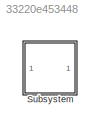
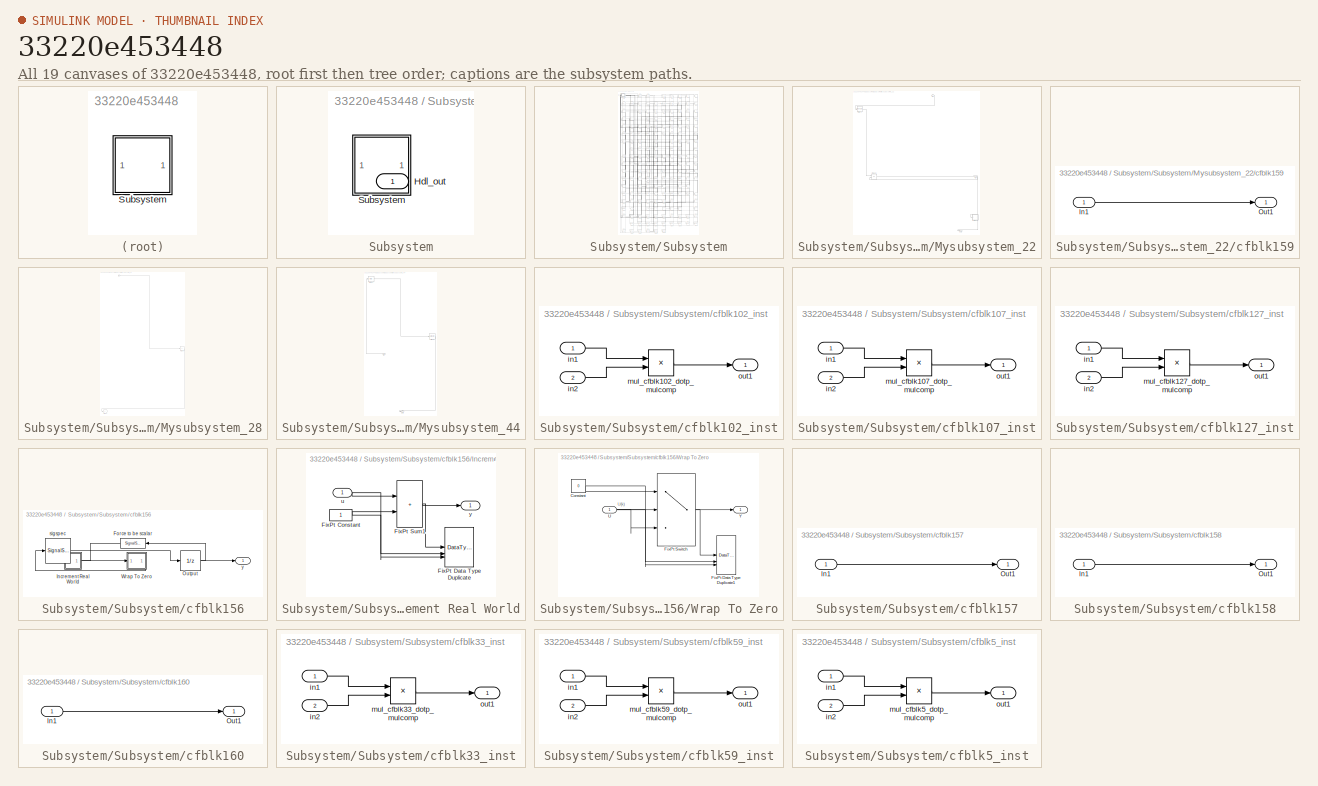
[diagram: thumbnail index - all 19 canvases of the model, root first then tree order]
MODEL slx_33220e453448
KIND model
CONFIG AbsTol = auto
CONFIG EnableMultiTasking = off
CONFIG FixedStep = auto
CONFIG MaxStep = auto
CONFIG MinStep = auto
CONFIG RelTol = 1e-3
CONFIG SampleTimeConstraint = Unconstrained
CONFIG SolverName = VariableStepAuto
CONFIG StartTime = 0.0
CONFIG StopTime = 10.0
BLOCK [SubSystem] Subsystem
BLOCK [Outport] Subsystem/Hdl_out
  OutDataTypeStr = uint8
  SampleTime = 1
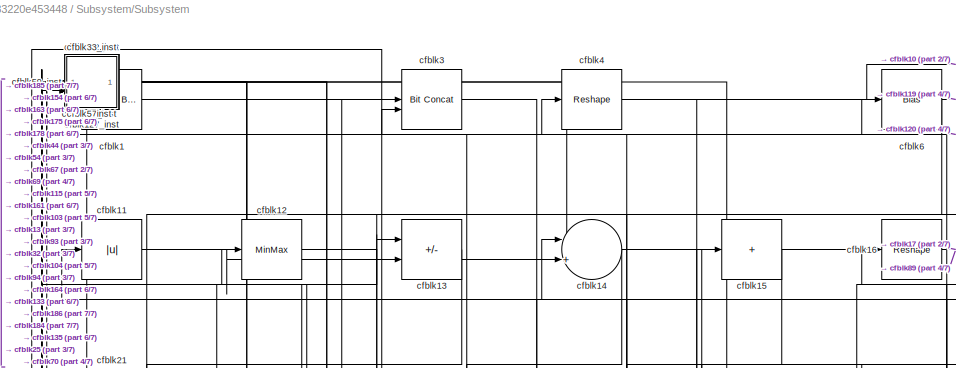
[diagram: Subsystem/Subsystem - part 1/7, top left region]
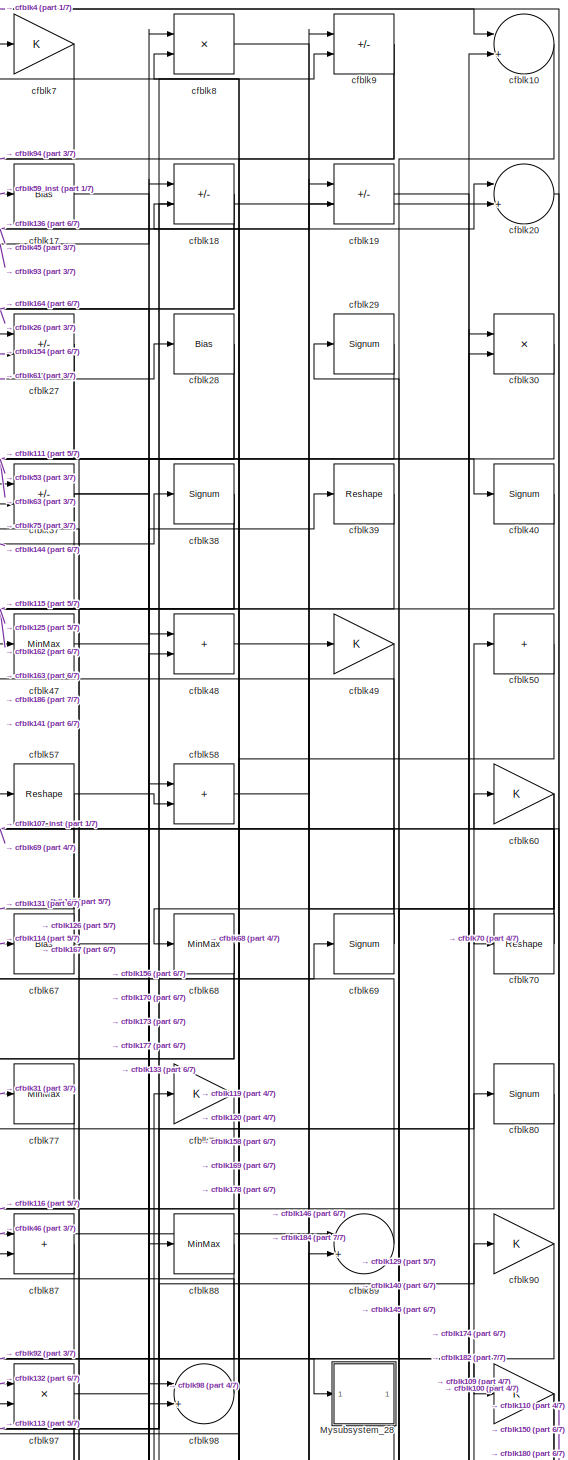
[diagram: Subsystem/Subsystem - part 2/7, top right region]
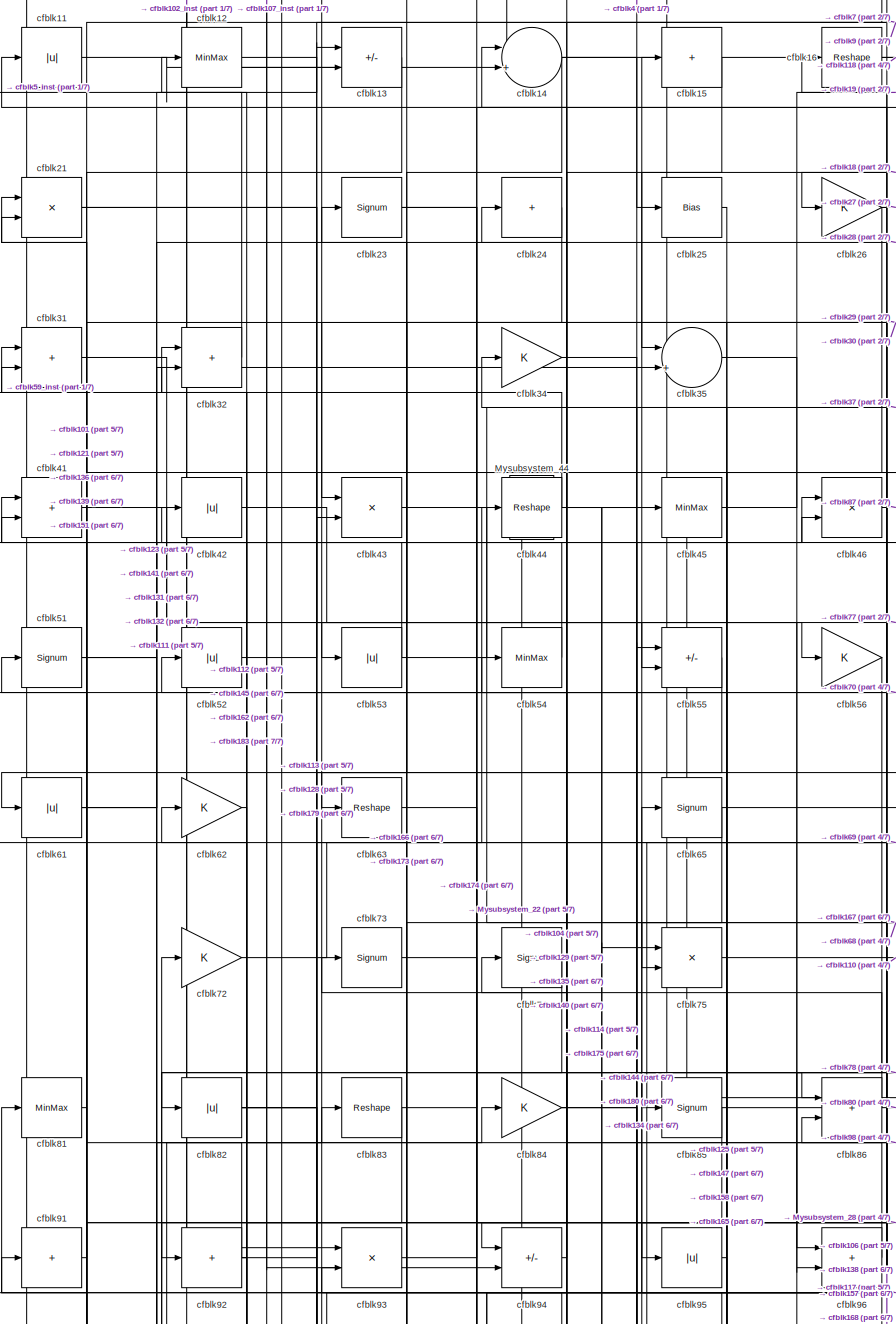
[diagram: Subsystem/Subsystem - part 3/7, top left region]
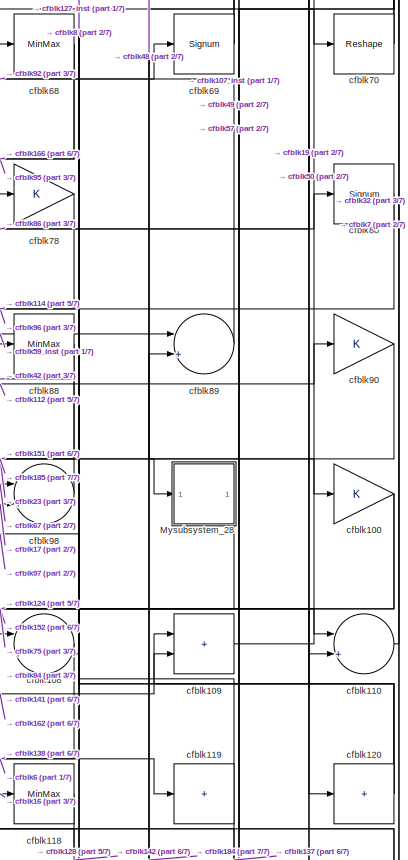
[diagram: Subsystem/Subsystem - part 4/7, middle right region]
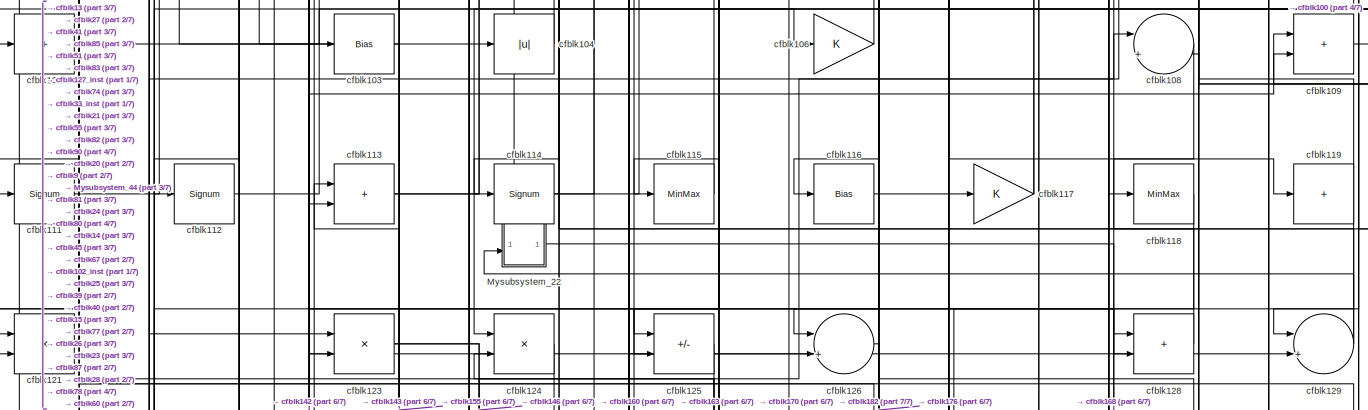
[diagram: Subsystem/Subsystem - part 5/7, full width, middle band]
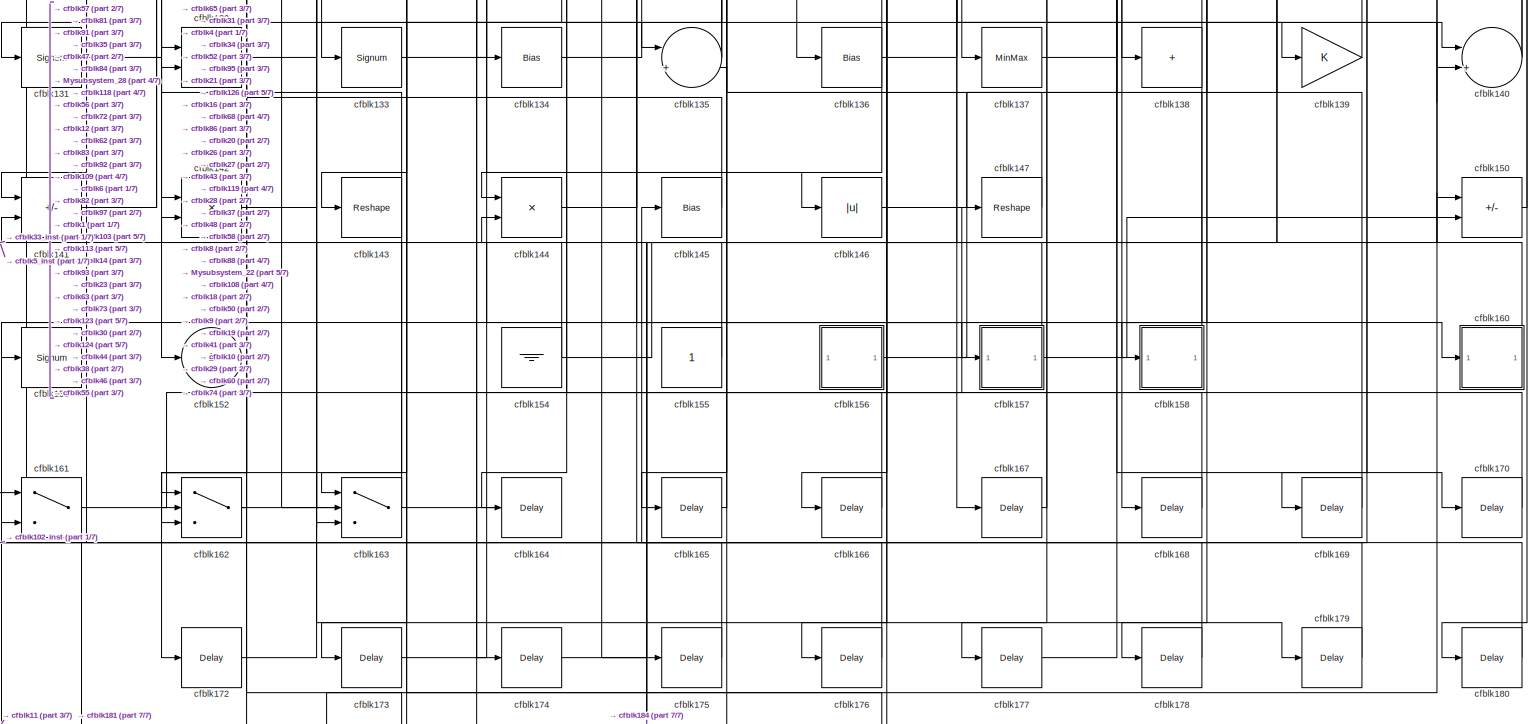
[diagram: Subsystem/Subsystem - part 6/7, full width, bottom band]
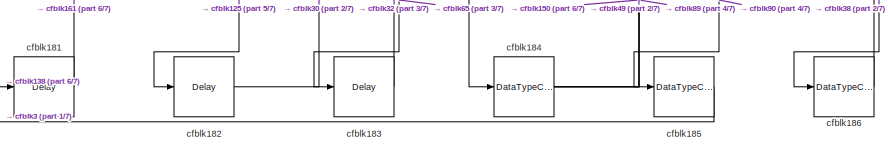
[diagram: Subsystem/Subsystem - part 7/7, bottom left region]
BLOCK [SubSystem] Subsystem/Subsystem
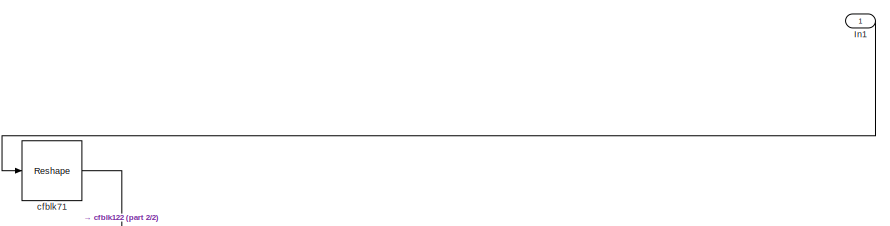
[diagram: Subsystem/Subsystem/Mysubsystem_22 - part 1/2, top left region]
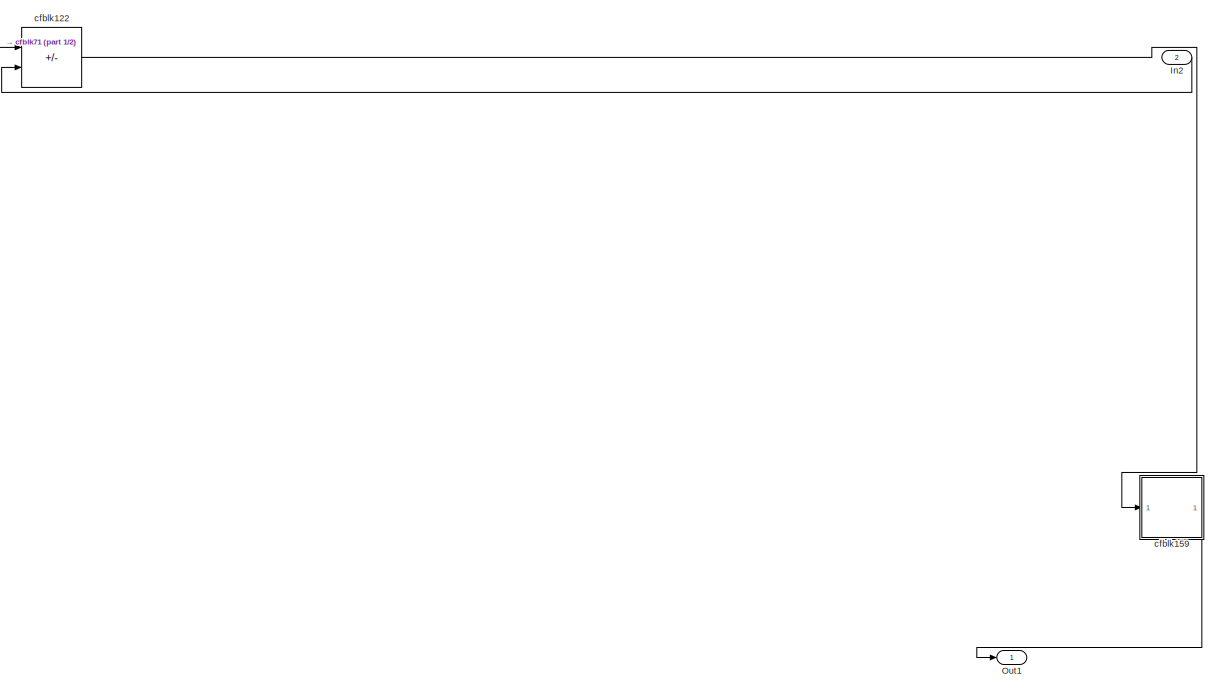
[diagram: Subsystem/Subsystem/Mysubsystem_22 - part 2/2, full width, bottom band]
BLOCK [SubSystem] Subsystem/Subsystem/Mysubsystem_22
BLOCK [Inport] Subsystem/Subsystem/Mysubsystem_22/In1
  OutDataTypeStr = uint8
  PortDimensions = 1
  SampleTime = 1
BLOCK [Inport] Subsystem/Subsystem/Mysubsystem_22/In2
  OutDataTypeStr = uint8
  Port = 2
  PortDimensions = 1
  SampleTime = 1
BLOCK [Outport] Subsystem/Subsystem/Mysubsystem_22/Out1
  SampleTime = 1
BLOCK [Sum] Subsystem/Subsystem/Mysubsystem_22/cfblk122
  IconShape = rectangular
  Inputs = +-
BLOCK [SubSystem] Subsystem/Subsystem/Mysubsystem_22/cfblk159
BLOCK [Inport] Subsystem/Subsystem/Mysubsystem_22/cfblk159/In1
  OutDataTypeStr = uint8
  PortDimensions = 1
  SampleTime = 1
BLOCK [Outport] Subsystem/Subsystem/Mysubsystem_22/cfblk159/Out1
  SampleTime = 1
BLOCK [Reshape] Subsystem/Subsystem/Mysubsystem_22/cfblk71
BLOCK [SubSystem] Subsystem/Subsystem/Mysubsystem_28
BLOCK [Inport] Subsystem/Subsystem/Mysubsystem_28/In1
  OutDataTypeStr = uint8
  PortDimensions = 1
  SampleTime = 1
BLOCK [Outport] Subsystem/Subsystem/Mysubsystem_28/cfblk152
  SampleTime = 1
  VectorParamsAs1DForOutWhenUnconnected = off
BLOCK [Sum] Subsystem/Subsystem/Mysubsystem_28/cfblk99
  IconShape = rectangular
  Inputs = +
BLOCK [SubSystem] Subsystem/Subsystem/Mysubsystem_44
BLOCK [Inport] Subsystem/Subsystem/Mysubsystem_44/In1
  OutDataTypeStr = uint8
  PortDimensions = 1
  SampleTime = 1
BLOCK [Outport] Subsystem/Subsystem/Mysubsystem_44/Out1
  SampleTime = 1
BLOCK [Bias] Subsystem/Subsystem/Mysubsystem_44/cfblk22
  Bias = 0.0
  SaturateOnIntegerOverflow = off
BLOCK [Signum] Subsystem/Subsystem/Mysubsystem_44/cfblk66
BLOCK [Reference] Subsystem/Subsystem/cfblk1  REF=simulink/Logic and Bit
Operations/Extract Bits
  LibrarySourceBlock = hdlsllib/Logic and Bit\nOperations/Extract Bits
  SourceBlock = simulink/Logic and Bit\nOperations/Extract Bits
  SourceType = Extract Bits
BLOCK [Sum] Subsystem/Subsystem/cfblk10
  Inputs = |++
  OutDataTypeStr = uint8
BLOCK [Gain] Subsystem/Subsystem/cfblk100
  OutDataTypeStr = uint8
BLOCK [Sum] Subsystem/Subsystem/cfblk101
  IconShape = rectangular
  Inputs = +
  OutDataTypeStr = uint8
BLOCK [SubSystem] Subsystem/Subsystem/cfblk102_inst
BLOCK [Inport] Subsystem/Subsystem/cfblk102_inst/in1
  OutDataTypeStr = uint8
  SampleTime = 1
BLOCK [Inport] Subsystem/Subsystem/cfblk102_inst/in2
  OutDataTypeStr = uint8
  Port = 2
  SampleTime = 1
BLOCK [Product] Subsystem/Subsystem/cfblk102_inst/mul_cfblk102_dotp_mulcomp
  Inputs = **
  OutDataTypeStr = uint8
  SampleTime = 1
BLOCK [Outport] Subsystem/Subsystem/cfblk102_inst/out1
  OutDataTypeStr = uint8
  SampleTime = 1
BLOCK [Bias] Subsystem/Subsystem/cfblk103
  Bias = 0.0
  SaturateOnIntegerOverflow = off
BLOCK [Abs] Subsystem/Subsystem/cfblk104
  OutDataTypeStr = uint8
  SaturateOnIntegerOverflow = off
BLOCK [Gain] Subsystem/Subsystem/cfblk106
  OutDataTypeStr = uint8
BLOCK [SubSystem] Subsystem/Subsystem/cfblk107_inst
BLOCK [Inport] Subsystem/Subsystem/cfblk107_inst/in1
  OutDataTypeStr = uint8
  SampleTime = 1
BLOCK [Inport] Subsystem/Subsystem/cfblk107_inst/in2
  OutDataTypeStr = uint8
  Port = 2
  SampleTime = 1
BLOCK [Product] Subsystem/Subsystem/cfblk107_inst/mul_cfblk107_dotp_mulcomp
  Inputs = **
  OutDataTypeStr = uint8
  SampleTime = 1
BLOCK [Outport] Subsystem/Subsystem/cfblk107_inst/out1
  OutDataTypeStr = uint8
  SampleTime = 1
BLOCK [Sum] Subsystem/Subsystem/cfblk108
  Inputs = |++
  OutDataTypeStr = uint8
BLOCK [Sum] Subsystem/Subsystem/cfblk109
  IconShape = rectangular
  OutDataTypeStr = uint8
BLOCK [Abs] Subsystem/Subsystem/cfblk11
  OutDataTypeStr = uint8
  SaturateOnIntegerOverflow = off
BLOCK [Sum] Subsystem/Subsystem/cfblk110
  Inputs = |++
  OutDataTypeStr = uint8
BLOCK [Signum] Subsystem/Subsystem/cfblk111
BLOCK [Signum] Subsystem/Subsystem/cfblk112
BLOCK [Sum] Subsystem/Subsystem/cfblk113
  IconShape = rectangular
  OutDataTypeStr = uint8
BLOCK [Signum] Subsystem/Subsystem/cfblk114
BLOCK [MinMax] Subsystem/Subsystem/cfblk115
  OutDataTypeStr = uint8
BLOCK [Bias] Subsystem/Subsystem/cfblk116
  Bias = 0.0
  SaturateOnIntegerOverflow = off
BLOCK [Gain] Subsystem/Subsystem/cfblk117
  OutDataTypeStr = uint8
BLOCK [MinMax] Subsystem/Subsystem/cfblk118
  OutDataTypeStr = uint8
BLOCK [Sum] Subsystem/Subsystem/cfblk119
  IconShape = rectangular
  Inputs = +
  OutDataTypeStr = uint8
BLOCK [MinMax] Subsystem/Subsystem/cfblk12
  OutDataTypeStr = uint8
BLOCK [Sum] Subsystem/Subsystem/cfblk120
  IconShape = rectangular
  Inputs = +
  OutDataTypeStr = uint8
BLOCK [Product] Subsystem/Subsystem/cfblk121
  Inputs = */
  OutDataTypeStr = uint8
  RndMeth = Zero
  SaturateOnIntegerOverflow = on
BLOCK [Product] Subsystem/Subsystem/cfblk123
  Inputs = */
  OutDataTypeStr = uint8
  RndMeth = Zero
  SaturateOnIntegerOverflow = on
BLOCK [Product] Subsystem/Subsystem/cfblk124
  Inputs = */
  OutDataTypeStr = uint8
  RndMeth = Zero
  SaturateOnIntegerOverflow = on
BLOCK [Sum] Subsystem/Subsystem/cfblk125
  IconShape = rectangular
  Inputs = +-
  OutDataTypeStr = uint8
BLOCK [Sum] Subsystem/Subsystem/cfblk126
  Inputs = |++
  OutDataTypeStr = uint8
BLOCK [SubSystem] Subsystem/Subsystem/cfblk127_inst
BLOCK [Inport] Subsystem/Subsystem/cfblk127_inst/in1
  OutDataTypeStr = uint8
  SampleTime = 1
BLOCK [Inport] Subsystem/Subsystem/cfblk127_inst/in2
  OutDataTypeStr = uint8
  Port = 2
  SampleTime = 1
BLOCK [Product] Subsystem/Subsystem/cfblk127_inst/mul_cfblk127_dotp_mulcomp
  Inputs = **
  OutDataTypeStr = uint8
  SampleTime = 1
BLOCK [Outport] Subsystem/Subsystem/cfblk127_inst/out1
  OutDataTypeStr = uint8
  SampleTime = 1
BLOCK [Sum] Subsystem/Subsystem/cfblk128
  IconShape = rectangular
  OutDataTypeStr = uint8
BLOCK [Sum] Subsystem/Subsystem/cfblk129
  Inputs = |++
  OutDataTypeStr = uint8
BLOCK [Sum] Subsystem/Subsystem/cfblk13
  IconShape = rectangular
  Inputs = +-
  OutDataTypeStr = uint8
BLOCK [Signum] Subsystem/Subsystem/cfblk131
BLOCK [Product] Subsystem/Subsystem/cfblk132
  Inputs = */
  OutDataTypeStr = uint8
  RndMeth = Zero
  SaturateOnIntegerOverflow = on
BLOCK [Signum] Subsystem/Subsystem/cfblk133
BLOCK [Bias] Subsystem/Subsystem/cfblk134
  Bias = 0.0
  SaturateOnIntegerOverflow = off
BLOCK [Sum] Subsystem/Subsystem/cfblk135
  Inputs = |++
  OutDataTypeStr = uint8
BLOCK [Bias] Subsystem/Subsystem/cfblk136
  Bias = 0.0
  SaturateOnIntegerOverflow = off
BLOCK [MinMax] Subsystem/Subsystem/cfblk137
  OutDataTypeStr = uint8
BLOCK [Sum] Subsystem/Subsystem/cfblk138
  IconShape = rectangular
  Inputs = +
  OutDataTypeStr = uint8
BLOCK [Gain] Subsystem/Subsystem/cfblk139
  OutDataTypeStr = uint8
BLOCK [Sum] Subsystem/Subsystem/cfblk14
  Inputs = |++
  OutDataTypeStr = uint8
BLOCK [Sum] Subsystem/Subsystem/cfblk140
  Inputs = |++
  OutDataTypeStr = uint8
BLOCK [Sum] Subsystem/Subsystem/cfblk141
  IconShape = rectangular
  Inputs = +-
  OutDataTypeStr = uint8
BLOCK [Product] Subsystem/Subsystem/cfblk142
  Inputs = */
  OutDataTypeStr = uint8
  RndMeth = Zero
  SaturateOnIntegerOverflow = on
BLOCK [Reshape] Subsystem/Subsystem/cfblk143
BLOCK [Product] Subsystem/Subsystem/cfblk144
  Inputs = */
  OutDataTypeStr = uint8
  RndMeth = Zero
  SaturateOnIntegerOverflow = on
BLOCK [Bias] Subsystem/Subsystem/cfblk145
  Bias = 0.0
  SaturateOnIntegerOverflow = off
BLOCK [Abs] Subsystem/Subsystem/cfblk146
  OutDataTypeStr = uint8
  SaturateOnIntegerOverflow = off
BLOCK [Reshape] Subsystem/Subsystem/cfblk147
BLOCK [Sum] Subsystem/Subsystem/cfblk15
  IconShape = rectangular
  Inputs = +
  OutDataTypeStr = uint8
BLOCK [Sum] Subsystem/Subsystem/cfblk150
  IconShape = rectangular
  Inputs = +-
  OutDataTypeStr = uint8
BLOCK [Signum] Subsystem/Subsystem/cfblk151
BLOCK [Outport] Subsystem/Subsystem/cfblk152
  OutDataTypeStr = uint8
  SampleTime = 1
  VectorParamsAs1DForOutWhenUnconnected = off
BLOCK [Ground] Subsystem/Subsystem/cfblk154
BLOCK [Constant] Subsystem/Subsystem/cfblk155
  OutDataTypeStr = uint8
  SampleTime = -1
BLOCK [SubSystem] Subsystem/Subsystem/cfblk156
BLOCK [SignalSpecification] Subsystem/Subsystem/cfblk156/Force to be scalar
  Dimensions = 1
  DisableCoverage = on
BLOCK [SubSystem] Subsystem/Subsystem/cfblk156/Increment Real World
BLOCK [Constant] Subsystem/Subsystem/cfblk156/Increment Real World/FixPt Constant
  DisableCoverage = on
  OutDataTypeStr = Inherit: Inherit via back propagation
  SampleTime = -1
BLOCK [DataTypeDuplicate] Subsystem/Subsystem/cfblk156/Increment Real World/FixPt Data Type Duplicate
  DisableCoverage = on
  NumInputPorts = 3
BLOCK [Sum] Subsystem/Subsystem/cfblk156/Increment Real World/FixPt Sum1
  IconShape = rectangular
  InputSameDT = on
  LockScale = on
  OutDataTypeStr = Inherit: Inherit via back propagation
BLOCK [Inport] Subsystem/Subsystem/cfblk156/Increment Real World/u
  OutDataTypeStr = uint8
  SampleTime = 1
BLOCK [Outport] Subsystem/Subsystem/cfblk156/Increment Real World/y
  SampleTime = 1
BLOCK [UnitDelay] Subsystem/Subsystem/cfblk156/Output
  HasFrameUpgradeWarning = on
  InitialCondition = 0.0
  SampleTime = tsamp
BLOCK [SubSystem] Subsystem/Subsystem/cfblk156/Wrap To Zero
BLOCK [Constant] Subsystem/Subsystem/cfblk156/Wrap To Zero/Constant
  DisableCoverage = on
  OutDataTypeStr = Inherit: Inherit via back propagation
  SampleTime = -1
  Value = 0
BLOCK [DataTypeDuplicate] Subsystem/Subsystem/cfblk156/Wrap To Zero/FixPt Data Type Duplicate1
  DisableCoverage = on
  NumInputPorts = 3
BLOCK [Switch] Subsystem/Subsystem/cfblk156/Wrap To Zero/FixPt Switch
  Criteria = u2 > Threshold
  InputSameDT = off
  OutDataTypeStr = Inherit: Inherit via back propagation
  SaturateOnIntegerOverflow = off
  Threshold = Threshold
  ZeroCross = off
BLOCK [Inport] Subsystem/Subsystem/cfblk156/Wrap To Zero/U
  OutDataTypeStr = uint8
  SampleTime = 1
BLOCK [Outport] Subsystem/Subsystem/cfblk156/Wrap To Zero/Y
  SampleTime = 1
BLOCK [SignalSpecification] Subsystem/Subsystem/cfblk156/sigspec
  Dimensions = 1
  OutDataTypeStr = uint8
BLOCK [Outport] Subsystem/Subsystem/cfblk156/y
  SampleTime = 1
BLOCK [SubSystem] Subsystem/Subsystem/cfblk157
BLOCK [Inport] Subsystem/Subsystem/cfblk157/In1
  OutDataTypeStr = uint8
  PortDimensions = 1
  SampleTime = 1
BLOCK [Outport] Subsystem/Subsystem/cfblk157/Out1
  SampleTime = 1
BLOCK [SubSystem] Subsystem/Subsystem/cfblk158
BLOCK [Inport] Subsystem/Subsystem/cfblk158/In1
  OutDataTypeStr = uint8
  PortDimensions = 1
  SampleTime = 1
BLOCK [Outport] Subsystem/Subsystem/cfblk158/Out1
  SampleTime = 1
BLOCK [Reshape] Subsystem/Subsystem/cfblk16
BLOCK [SubSystem] Subsystem/Subsystem/cfblk160
BLOCK [Inport] Subsystem/Subsystem/cfblk160/In1
  OutDataTypeStr = uint8
  PortDimensions = 1
  SampleTime = 1
BLOCK [Outport] Subsystem/Subsystem/cfblk160/Out1
  SampleTime = 1
BLOCK [Switch] Subsystem/Subsystem/cfblk161
  InputSameDT = off
  OutDataTypeStr = uint8
  SaturateOnIntegerOverflow = off
BLOCK [Switch] Subsystem/Subsystem/cfblk162
  InputSameDT = off
  OutDataTypeStr = uint8
  SaturateOnIntegerOverflow = off
BLOCK [Switch] Subsystem/Subsystem/cfblk163
  InputSameDT = off
  OutDataTypeStr = uint8
  SaturateOnIntegerOverflow = off
BLOCK [Delay] Subsystem/Subsystem/cfblk164
  InputPortMap = u0
  SampleTime = 1
BLOCK [Delay] Subsystem/Subsystem/cfblk165
  InputPortMap = u0
  SampleTime = 1
BLOCK [Delay] Subsystem/Subsystem/cfblk166
  InputPortMap = u0
  SampleTime = 1
BLOCK [Delay] Subsystem/Subsystem/cfblk167
  InputPortMap = u0
  SampleTime = 1
BLOCK [Delay] Subsystem/Subsystem/cfblk168
  InputPortMap = u0
  SampleTime = 1
BLOCK [Delay] Subsystem/Subsystem/cfblk169
  InputPortMap = u0
  SampleTime = 1
BLOCK [Bias] Subsystem/Subsystem/cfblk17
  Bias = 0.0
  SaturateOnIntegerOverflow = off
BLOCK [Delay] Subsystem/Subsystem/cfblk170
  InputPortMap = u0
  SampleTime = 1
BLOCK [Delay] Subsystem/Subsystem/cfblk172
  InputPortMap = u0
  SampleTime = 1
BLOCK [Delay] Subsystem/Subsystem/cfblk173
  InputPortMap = u0
  SampleTime = 1
BLOCK [Delay] Subsystem/Subsystem/cfblk174
  InputPortMap = u0
  SampleTime = 1
BLOCK [Delay] Subsystem/Subsystem/cfblk175
  InputPortMap = u0
  SampleTime = 1
BLOCK [Delay] Subsystem/Subsystem/cfblk176
  InputPortMap = u0
  SampleTime = 1
BLOCK [Delay] Subsystem/Subsystem/cfblk177
  InputPortMap = u0
  SampleTime = 1
BLOCK [Delay] Subsystem/Subsystem/cfblk178
  InputPortMap = u0
  SampleTime = 1
BLOCK [Delay] Subsystem/Subsystem/cfblk179
  InputPortMap = u0
  SampleTime = 1
BLOCK [Sum] Subsystem/Subsystem/cfblk18
  IconShape = rectangular
  Inputs = +-
  OutDataTypeStr = uint8
BLOCK [Delay] Subsystem/Subsystem/cfblk180
  InputPortMap = u0
  SampleTime = 1
BLOCK [Delay] Subsystem/Subsystem/cfblk181
  InputPortMap = u0
  SampleTime = 1
BLOCK [Delay] Subsystem/Subsystem/cfblk182
  InputPortMap = u0
  SampleTime = 1
BLOCK [Delay] Subsystem/Subsystem/cfblk183
  InputPortMap = u0
  SampleTime = 1
BLOCK [DataTypeConversion] Subsystem/Subsystem/cfblk184
  OutDataTypeStr = uint8
  RndMeth = Floor
  SaturateOnIntegerOverflow = off
BLOCK [DataTypeConversion] Subsystem/Subsystem/cfblk185
  OutDataTypeStr = uint8
  RndMeth = Floor
  SaturateOnIntegerOverflow = off
BLOCK [DataTypeConversion] Subsystem/Subsystem/cfblk186
  OutDataTypeStr = uint8
  RndMeth = Floor
  SaturateOnIntegerOverflow = off
BLOCK [Sum] Subsystem/Subsystem/cfblk19
  IconShape = rectangular
  Inputs = +-
  OutDataTypeStr = uint8
BLOCK [Sum] Subsystem/Subsystem/cfblk20
  Inputs = |++
  OutDataTypeStr = uint8
BLOCK [Product] Subsystem/Subsystem/cfblk21
  Inputs = */
  OutDataTypeStr = uint8
  RndMeth = Zero
  SaturateOnIntegerOverflow = on
BLOCK [Signum] Subsystem/Subsystem/cfblk23
BLOCK [Sum] Subsystem/Subsystem/cfblk24
  IconShape = rectangular
  Inputs = +
  OutDataTypeStr = uint8
BLOCK [Bias] Subsystem/Subsystem/cfblk25
  Bias = 0.0
  SaturateOnIntegerOverflow = off
BLOCK [Gain] Subsystem/Subsystem/cfblk26
  OutDataTypeStr = uint8
BLOCK [Sum] Subsystem/Subsystem/cfblk27
  IconShape = rectangular
  Inputs = +-
  OutDataTypeStr = uint8
BLOCK [Bias] Subsystem/Subsystem/cfblk28
  Bias = 0.0
  SaturateOnIntegerOverflow = off
BLOCK [Signum] Subsystem/Subsystem/cfblk29
BLOCK [Reference] Subsystem/Subsystem/cfblk3  REF=hdlsllib/Logic and Bit
Operations/Bit Concat
  SourceBlock = hdlsllib/Logic and Bit\nOperations/Bit Concat
  SourceType = Bit Concat
BLOCK [Product] Subsystem/Subsystem/cfblk30
  Inputs = */
  OutDataTypeStr = uint8
  RndMeth = Zero
  SaturateOnIntegerOverflow = on
BLOCK [Sum] Subsystem/Subsystem/cfblk31
  IconShape = rectangular
  OutDataTypeStr = uint8
BLOCK [Sum] Subsystem/Subsystem/cfblk32
  IconShape = rectangular
  OutDataTypeStr = uint8
BLOCK [SubSystem] Subsystem/Subsystem/cfblk33_inst
BLOCK [Inport] Subsystem/Subsystem/cfblk33_inst/in1
  OutDataTypeStr = uint8
  SampleTime = 1
BLOCK [Inport] Subsystem/Subsystem/cfblk33_inst/in2
  OutDataTypeStr = uint8
  Port = 2
  SampleTime = 1
BLOCK [Product] Subsystem/Subsystem/cfblk33_inst/mul_cfblk33_dotp_mulcomp
  Inputs = **
  OutDataTypeStr = uint8
  SampleTime = 1
BLOCK [Outport] Subsystem/Subsystem/cfblk33_inst/out1
  OutDataTypeStr = uint8
  SampleTime = 1
BLOCK [Gain] Subsystem/Subsystem/cfblk34
  OutDataTypeStr = uint8
BLOCK [Sum] Subsystem/Subsystem/cfblk35
  Inputs = |++
  OutDataTypeStr = uint8
BLOCK [Sum] Subsystem/Subsystem/cfblk37
  IconShape = rectangular
  Inputs = +-
  OutDataTypeStr = uint8
BLOCK [Signum] Subsystem/Subsystem/cfblk38
BLOCK [Reshape] Subsystem/Subsystem/cfblk39
BLOCK [Reshape] Subsystem/Subsystem/cfblk4
BLOCK [Signum] Subsystem/Subsystem/cfblk40
BLOCK [Sum] Subsystem/Subsystem/cfblk41
  IconShape = rectangular
  OutDataTypeStr = uint8
BLOCK [Abs] Subsystem/Subsystem/cfblk42
  OutDataTypeStr = uint8
  SaturateOnIntegerOverflow = off
BLOCK [Product] Subsystem/Subsystem/cfblk43
  Inputs = */
  OutDataTypeStr = uint8
  RndMeth = Zero
  SaturateOnIntegerOverflow = on
BLOCK [Reshape] Subsystem/Subsystem/cfblk44
BLOCK [MinMax] Subsystem/Subsystem/cfblk45
  OutDataTypeStr = uint8
BLOCK [Product] Subsystem/Subsystem/cfblk46
  Inputs = */
  OutDataTypeStr = uint8
  RndMeth = Zero
  SaturateOnIntegerOverflow = on
BLOCK [MinMax] Subsystem/Subsystem/cfblk47
  OutDataTypeStr = uint8
BLOCK [Sum] Subsystem/Subsystem/cfblk48
  IconShape = rectangular
  OutDataTypeStr = uint8
BLOCK [Gain] Subsystem/Subsystem/cfblk49
  OutDataTypeStr = uint8
BLOCK [Sum] Subsystem/Subsystem/cfblk50
  IconShape = rectangular
  Inputs = +
  OutDataTypeStr = uint8
BLOCK [Signum] Subsystem/Subsystem/cfblk51
BLOCK [Abs] Subsystem/Subsystem/cfblk52
  OutDataTypeStr = uint8
  SaturateOnIntegerOverflow = off
BLOCK [Abs] Subsystem/Subsystem/cfblk53
  OutDataTypeStr = uint8
  SaturateOnIntegerOverflow = off
BLOCK [MinMax] Subsystem/Subsystem/cfblk54
  OutDataTypeStr = uint8
BLOCK [Sum] Subsystem/Subsystem/cfblk55
  IconShape = rectangular
  Inputs = +-
  OutDataTypeStr = uint8
BLOCK [Gain] Subsystem/Subsystem/cfblk56
  OutDataTypeStr = uint8
BLOCK [Reshape] Subsystem/Subsystem/cfblk57
BLOCK [Sum] Subsystem/Subsystem/cfblk58
  IconShape = rectangular
  OutDataTypeStr = uint8
BLOCK [SubSystem] Subsystem/Subsystem/cfblk59_inst
BLOCK [Inport] Subsystem/Subsystem/cfblk59_inst/in1
  OutDataTypeStr = uint8
  SampleTime = 1
BLOCK [Inport] Subsystem/Subsystem/cfblk59_inst/in2
  OutDataTypeStr = uint8
  Port = 2
  SampleTime = 1
BLOCK [Product] Subsystem/Subsystem/cfblk59_inst/mul_cfblk59_dotp_mulcomp
  Inputs = **
  OutDataTypeStr = uint8
  SampleTime = 1
BLOCK [Outport] Subsystem/Subsystem/cfblk59_inst/out1
  OutDataTypeStr = uint8
  SampleTime = 1
BLOCK [SubSystem] Subsystem/Subsystem/cfblk5_inst
BLOCK [Inport] Subsystem/Subsystem/cfblk5_inst/in1
  OutDataTypeStr = uint8
  SampleTime = 1
BLOCK [Inport] Subsystem/Subsystem/cfblk5_inst/in2
  OutDataTypeStr = uint8
  Port = 2
  SampleTime = 1
BLOCK [Product] Subsystem/Subsystem/cfblk5_inst/mul_cfblk5_dotp_mulcomp
  Inputs = **
  OutDataTypeStr = uint8
  SampleTime = 1
BLOCK [Outport] Subsystem/Subsystem/cfblk5_inst/out1
  OutDataTypeStr = uint8
  SampleTime = 1
BLOCK [Bias] Subsystem/Subsystem/cfblk6
  Bias = 0.0
  SaturateOnIntegerOverflow = off
BLOCK [Gain] Subsystem/Subsystem/cfblk60
  OutDataTypeStr = uint8
BLOCK [Abs] Subsystem/Subsystem/cfblk61
  OutDataTypeStr = uint8
  SaturateOnIntegerOverflow = off
BLOCK [Gain] Subsystem/Subsystem/cfblk62
  OutDataTypeStr = uint8
BLOCK [Reshape] Subsystem/Subsystem/cfblk63
BLOCK [Signum] Subsystem/Subsystem/cfblk65
BLOCK [Bias] Subsystem/Subsystem/cfblk67
  Bias = 0.0
  SaturateOnIntegerOverflow = off
BLOCK [MinMax] Subsystem/Subsystem/cfblk68
  OutDataTypeStr = uint8
BLOCK [Signum] Subsystem/Subsystem/cfblk69
BLOCK [Gain] Subsystem/Subsystem/cfblk7
  OutDataTypeStr = uint8
BLOCK [Reshape] Subsystem/Subsystem/cfblk70
BLOCK [Gain] Subsystem/Subsystem/cfblk72
  OutDataTypeStr = uint8
BLOCK [Signum] Subsystem/Subsystem/cfblk73
BLOCK [Signum] Subsystem/Subsystem/cfblk74
BLOCK [Product] Subsystem/Subsystem/cfblk75
  Inputs = */
  OutDataTypeStr = uint8
  RndMeth = Zero
  SaturateOnIntegerOverflow = on
BLOCK [MinMax] Subsystem/Subsystem/cfblk77
  OutDataTypeStr = uint8
BLOCK [Gain] Subsystem/Subsystem/cfblk78
  OutDataTypeStr = uint8
BLOCK [Product] Subsystem/Subsystem/cfblk8
  Inputs = */
  OutDataTypeStr = uint8
  RndMeth = Zero
  SaturateOnIntegerOverflow = on
BLOCK [Signum] Subsystem/Subsystem/cfblk80
BLOCK [MinMax] Subsystem/Subsystem/cfblk81
  OutDataTypeStr = uint8
BLOCK [Abs] Subsystem/Subsystem/cfblk82
  OutDataTypeStr = uint8
  SaturateOnIntegerOverflow = off
BLOCK [Reshape] Subsystem/Subsystem/cfblk83
BLOCK [Gain] Subsystem/Subsystem/cfblk84
  OutDataTypeStr = uint8
BLOCK [Signum] Subsystem/Subsystem/cfblk85
BLOCK [Sum] Subsystem/Subsystem/cfblk86
  IconShape = rectangular
  OutDataTypeStr = uint8
BLOCK [Sum] Subsystem/Subsystem/cfblk87
  IconShape = rectangular
  OutDataTypeStr = uint8
BLOCK [MinMax] Subsystem/Subsystem/cfblk88
  OutDataTypeStr = uint8
BLOCK [Sum] Subsystem/Subsystem/cfblk89
  Inputs = |++
  OutDataTypeStr = uint8
BLOCK [Sum] Subsystem/Subsystem/cfblk9
  IconShape = rectangular
  Inputs = +-
  OutDataTypeStr = uint8
BLOCK [Gain] Subsystem/Subsystem/cfblk90
  OutDataTypeStr = uint8
BLOCK [Sum] Subsystem/Subsystem/cfblk91
  IconShape = rectangular
  Inputs = +
  OutDataTypeStr = uint8
BLOCK [Sum] Subsystem/Subsystem/cfblk92
  IconShape = rectangular
  Inputs = +
  OutDataTypeStr = uint8
BLOCK [Product] Subsystem/Subsystem/cfblk93
  Inputs = */
  OutDataTypeStr = uint8
  RndMeth = Zero
  SaturateOnIntegerOverflow = on
BLOCK [Sum] Subsystem/Subsystem/cfblk94
  IconShape = rectangular
  Inputs = +-
  OutDataTypeStr = uint8
BLOCK [Abs] Subsystem/Subsystem/cfblk95
  OutDataTypeStr = uint8
  SaturateOnIntegerOverflow = off
BLOCK [Sum] Subsystem/Subsystem/cfblk96
  IconShape = rectangular
  OutDataTypeStr = uint8
BLOCK [Product] Subsystem/Subsystem/cfblk97
  Inputs = */
  OutDataTypeStr = uint8
  RndMeth = Zero
  SaturateOnIntegerOverflow = on
BLOCK [Sum] Subsystem/Subsystem/cfblk98
  Inputs = |++
  OutDataTypeStr = uint8
ANNOTATION Subsystem/Subsystem/cfblk156/Wrap To Zero: U(k)
LINE Subsystem/Subsystem/Mysubsystem_22/In1:1 -> Subsystem/Subsystem/Mysubsystem_22/cfblk71:1
LINE Subsystem/Subsystem/Mysubsystem_22/In2:1 -> Subsystem/Subsystem/Mysubsystem_22/cfblk122:2
LINE Subsystem/Subsystem/Mysubsystem_22/cfblk122:1 -> Subsystem/Subsystem/Mysubsystem_22/cfblk159:1
LINE Subsystem/Subsystem/Mysubsystem_22/cfblk159/In1:1 -> Subsystem/Subsystem/Mysubsystem_22/cfblk159/Out1:1
LINE Subsystem/Subsystem/Mysubsystem_22/cfblk159:1 -> Subsystem/Subsystem/Mysubsystem_22/Out1:1
LINE Subsystem/Subsystem/Mysubsystem_22/cfblk71:1 -> Subsystem/Subsystem/Mysubsystem_22/cfblk122:1
LINE Subsystem/Subsystem/Mysubsystem_22:1 -> Subsystem/Subsystem/cfblk168:1
LINE Subsystem/Subsystem/Mysubsystem_28/In1:1 -> Subsystem/Subsystem/Mysubsystem_28/cfblk99:1
LINE Subsystem/Subsystem/Mysubsystem_28/cfblk99:1 -> Subsystem/Subsystem/Mysubsystem_28/cfblk152:1
LINE Subsystem/Subsystem/Mysubsystem_28:1 -> Subsystem/Subsystem/cfblk152:1
LINE Subsystem/Subsystem/Mysubsystem_44/In1:1 -> Subsystem/Subsystem/Mysubsystem_44/cfblk22:1
LINE Subsystem/Subsystem/Mysubsystem_44/cfblk22:1 -> Subsystem/Subsystem/Mysubsystem_44/cfblk66:1
LINE Subsystem/Subsystem/Mysubsystem_44/cfblk66:1 -> Subsystem/Subsystem/Mysubsystem_44/Out1:1
LINE Subsystem/Subsystem/Mysubsystem_44:1 -> Subsystem/Subsystem/Mysubsystem_22:1
NET Subsystem/Subsystem/cfblk100:1 -> Subsystem/Subsystem/cfblk108:2, Subsystem/Subsystem/cfblk124:1
LINE Subsystem/Subsystem/cfblk101:1 -> Subsystem/Subsystem/cfblk106:1
LINE Subsystem/Subsystem/cfblk102_inst/in1:1 -> Subsystem/Subsystem/cfblk102_inst/mul_cfblk102_dotp_mulcomp:1
LINE Subsystem/Subsystem/cfblk102_inst/in2:1 -> Subsystem/Subsystem/cfblk102_inst/mul_cfblk102_dotp_mulcomp:2
LINE Subsystem/Subsystem/cfblk102_inst/mul_cfblk102_dotp_mulcomp:1 -> Subsystem/Subsystem/cfblk102_inst/out1:1
NET Subsystem/Subsystem/cfblk102_inst:1 -> Subsystem/Subsystem/cfblk13:2, Subsystem/Subsystem/cfblk93:1
LINE Subsystem/Subsystem/cfblk103:1 -> Subsystem/Subsystem/cfblk143:1
LINE Subsystem/Subsystem/cfblk104:1 -> Subsystem/Subsystem/cfblk81:1
LINE Subsystem/Subsystem/cfblk106:1 -> Subsystem/Subsystem/cfblk15:1
LINE Subsystem/Subsystem/cfblk107_inst/in1:1 -> Subsystem/Subsystem/cfblk107_inst/mul_cfblk107_dotp_mulcomp:1
LINE Subsystem/Subsystem/cfblk107_inst/in2:1 -> Subsystem/Subsystem/cfblk107_inst/mul_cfblk107_dotp_mulcomp:2
LINE Subsystem/Subsystem/cfblk107_inst/mul_cfblk107_dotp_mulcomp:1 -> Subsystem/Subsystem/cfblk107_inst/out1:1
LINE Subsystem/Subsystem/cfblk107_inst:1 -> Subsystem/Subsystem/cfblk94:2
LINE Subsystem/Subsystem/cfblk108:1 -> Subsystem/Subsystem/cfblk138:1
LINE Subsystem/Subsystem/cfblk109:1 -> Subsystem/Subsystem/cfblk50:1
LINE Subsystem/Subsystem/cfblk10:1 -> Subsystem/Subsystem/cfblk145:1
LINE Subsystem/Subsystem/cfblk110:1 -> Subsystem/Subsystem/cfblk7:1
LINE Subsystem/Subsystem/cfblk111:1 -> Subsystem/Subsystem/cfblk83:1
LINE Subsystem/Subsystem/cfblk112:1 -> Subsystem/Subsystem/cfblk90:1
NET Subsystem/Subsystem/cfblk113:1 -> Subsystem/Subsystem/cfblk20:2, Subsystem/Subsystem/cfblk9:2
NET Subsystem/Subsystem/cfblk114:1 -> Subsystem/Subsystem/cfblk45:1, Subsystem/Subsystem/cfblk67:1
LINE Subsystem/Subsystem/cfblk115:1 -> Subsystem/Subsystem/cfblk102_inst:1
LINE Subsystem/Subsystem/cfblk116:1 -> Subsystem/Subsystem/cfblk117:1
NET Subsystem/Subsystem/cfblk117:1 -> Subsystem/Subsystem/cfblk23:1, Subsystem/Subsystem/cfblk87:2
LINE Subsystem/Subsystem/cfblk118:1 -> Subsystem/Subsystem/cfblk142:1
NET Subsystem/Subsystem/cfblk119:1 -> Subsystem/Subsystem/cfblk137:1, Subsystem/Subsystem/cfblk97:2
LINE Subsystem/Subsystem/cfblk11:1 -> Subsystem/Subsystem/cfblk14:2
NET Subsystem/Subsystem/cfblk120:1 -> Subsystem/Subsystem/cfblk109:1, Subsystem/Subsystem/cfblk127_inst:2, Subsystem/Subsystem/cfblk8:2
LINE Subsystem/Subsystem/cfblk121:1 -> Subsystem/Subsystem/cfblk41:1
NET Subsystem/Subsystem/cfblk123:1 -> Subsystem/Subsystem/cfblk146:1, Subsystem/Subsystem/cfblk160:1
LINE Subsystem/Subsystem/cfblk124:1 -> Subsystem/Subsystem/cfblk163:1
LINE Subsystem/Subsystem/cfblk125:1 -> Subsystem/Subsystem/cfblk182:1
LINE Subsystem/Subsystem/cfblk126:1 -> Subsystem/Subsystem/cfblk176:1
LINE Subsystem/Subsystem/cfblk127_inst/in1:1 -> Subsystem/Subsystem/cfblk127_inst/mul_cfblk127_dotp_mulcomp:1
LINE Subsystem/Subsystem/cfblk127_inst/in2:1 -> Subsystem/Subsystem/cfblk127_inst/mul_cfblk127_dotp_mulcomp:2
LINE Subsystem/Subsystem/cfblk127_inst/mul_cfblk127_dotp_mulcomp:1 -> Subsystem/Subsystem/cfblk127_inst/out1:1
LINE Subsystem/Subsystem/cfblk127_inst:1 -> Subsystem/Subsystem/cfblk103:1
LINE Subsystem/Subsystem/cfblk128:1 -> Subsystem/Subsystem/cfblk78:1
NET Subsystem/Subsystem/cfblk129:1 -> Subsystem/Subsystem/Mysubsystem_22:2, Subsystem/Subsystem/cfblk24:1
LINE Subsystem/Subsystem/cfblk12:1 -> Subsystem/Subsystem/cfblk55:2
LINE Subsystem/Subsystem/cfblk131:1 -> Subsystem/Subsystem/cfblk72:1
LINE Subsystem/Subsystem/cfblk132:1 -> Subsystem/Subsystem/cfblk97:1
LINE Subsystem/Subsystem/cfblk133:1 -> Subsystem/Subsystem/cfblk30:1
LINE Subsystem/Subsystem/cfblk134:1 -> Subsystem/Subsystem/cfblk65:1
NET Subsystem/Subsystem/cfblk135:1 -> Subsystem/Subsystem/cfblk31:1, Subsystem/Subsystem/cfblk4:1
NET Subsystem/Subsystem/cfblk136:1 -> Subsystem/Subsystem/cfblk144:1, Subsystem/Subsystem/cfblk20:1, Subsystem/Subsystem/cfblk21:1
LINE Subsystem/Subsystem/cfblk137:1 -> Subsystem/Subsystem/cfblk88:1
NET Subsystem/Subsystem/cfblk138:1 -> Subsystem/Subsystem/cfblk11:1, Subsystem/Subsystem/cfblk181:1
LINE Subsystem/Subsystem/cfblk139:1 -> Subsystem/Subsystem/cfblk41:2
LINE Subsystem/Subsystem/cfblk13:1 -> Subsystem/Subsystem/cfblk101:1
NET Subsystem/Subsystem/cfblk140:1 -> Subsystem/Subsystem/cfblk29:1, Subsystem/Subsystem/cfblk74:1
NET Subsystem/Subsystem/cfblk141:1 -> Subsystem/Subsystem/cfblk108:1, Subsystem/Subsystem/cfblk35:2, Subsystem/Subsystem/cfblk47:1, Subsystem/Subsystem/cfblk84:1
LINE Subsystem/Subsystem/cfblk142:1 -> Subsystem/Subsystem/cfblk126:2
NET Subsystem/Subsystem/cfblk143:1 -> Subsystem/Subsystem/cfblk132:2, Subsystem/Subsystem/cfblk172:1
NET Subsystem/Subsystem/cfblk144:1 -> Subsystem/Subsystem/cfblk38:1, Subsystem/Subsystem/cfblk46:1
LINE Subsystem/Subsystem/cfblk145:1 -> Subsystem/Subsystem/cfblk12:1
LINE Subsystem/Subsystem/cfblk146:1 -> Subsystem/Subsystem/cfblk19:2
LINE Subsystem/Subsystem/cfblk147:1 -> Subsystem/Subsystem/cfblk34:1
NET Subsystem/Subsystem/cfblk14:1 -> Subsystem/Subsystem/cfblk129:2, Subsystem/Subsystem/cfblk173:1
LINE Subsystem/Subsystem/cfblk150:1 -> Subsystem/Subsystem/cfblk60:1
LINE Subsystem/Subsystem/cfblk151:1 -> Subsystem/Subsystem/cfblk91:1
NET Subsystem/Subsystem/cfblk154:1 -> Subsystem/Subsystem/cfblk27:2, Subsystem/Subsystem/cfblk5_inst:1
LINE Subsystem/Subsystem/cfblk155:1 -> Subsystem/Subsystem/cfblk113:1
LINE Subsystem/Subsystem/cfblk156:1 -> Subsystem/Subsystem/cfblk58:1
LINE Subsystem/Subsystem/cfblk157/In1:1 -> Subsystem/Subsystem/cfblk157/Out1:1
NET Subsystem/Subsystem/cfblk157:1 -> Subsystem/Subsystem/cfblk150:2, Subsystem/Subsystem/cfblk16:1
LINE Subsystem/Subsystem/cfblk158/In1:1 -> Subsystem/Subsystem/cfblk158/Out1:1
LINE Subsystem/Subsystem/cfblk158:1 -> Subsystem/Subsystem/cfblk52:1
LINE Subsystem/Subsystem/cfblk15:1 -> Subsystem/Subsystem/cfblk35:1
LINE Subsystem/Subsystem/cfblk160/In1:1 -> Subsystem/Subsystem/cfblk160/Out1:1
LINE Subsystem/Subsystem/cfblk160:1 -> Subsystem/Subsystem/cfblk142:2
LINE Subsystem/Subsystem/cfblk161:1 -> Subsystem/Subsystem/cfblk147:1
NET Subsystem/Subsystem/cfblk162:1 -> Subsystem/Subsystem/cfblk109:2, Subsystem/Subsystem/cfblk62:1
LINE Subsystem/Subsystem/cfblk163:1 -> Subsystem/Subsystem/cfblk33_inst:1
LINE Subsystem/Subsystem/cfblk164:1 -> Subsystem/Subsystem/cfblk1:1
LINE Subsystem/Subsystem/cfblk165:1 -> Subsystem/Subsystem/cfblk135:2
LINE Subsystem/Subsystem/cfblk166:1 -> Subsystem/Subsystem/cfblk93:2
LINE Subsystem/Subsystem/cfblk167:1 -> Subsystem/Subsystem/cfblk37:2
LINE Subsystem/Subsystem/cfblk168:1 -> Subsystem/Subsystem/cfblk86:2
LINE Subsystem/Subsystem/cfblk169:1 -> Subsystem/Subsystem/cfblk18:2
LINE Subsystem/Subsystem/cfblk16:1 -> Subsystem/Subsystem/cfblk118:1
LINE Subsystem/Subsystem/cfblk170:1 -> Subsystem/Subsystem/cfblk124:2
LINE Subsystem/Subsystem/cfblk172:1 -> Subsystem/Subsystem/cfblk144:2
LINE Subsystem/Subsystem/cfblk173:1 -> Subsystem/Subsystem/cfblk8:1
LINE Subsystem/Subsystem/cfblk174:1 -> Subsystem/Subsystem/cfblk10:2
LINE Subsystem/Subsystem/cfblk175:1 -> Subsystem/Subsystem/cfblk102_inst:2
LINE Subsystem/Subsystem/cfblk176:1 -> Subsystem/Subsystem/cfblk161:3
LINE Subsystem/Subsystem/cfblk177:1 -> Subsystem/Subsystem/cfblk48:2
LINE Subsystem/Subsystem/cfblk178:1 -> Subsystem/Subsystem/cfblk33_inst:2
LINE Subsystem/Subsystem/cfblk179:1 -> Subsystem/Subsystem/cfblk141:2
LINE Subsystem/Subsystem/cfblk17:1 -> Subsystem/Subsystem/cfblk98:2
LINE Subsystem/Subsystem/cfblk180:1 -> Subsystem/Subsystem/cfblk55:1
LINE Subsystem/Subsystem/cfblk181:1 -> Subsystem/Subsystem/cfblk161:1
LINE Subsystem/Subsystem/cfblk182:1 -> Subsystem/Subsystem/cfblk30:2
LINE Subsystem/Subsystem/cfblk183:1 -> Subsystem/Subsystem/cfblk32:1
NET Subsystem/Subsystem/cfblk184:1 -> Subsystem/Subsystem/cfblk150:1, Subsystem/Subsystem/cfblk49:1, Subsystem/Subsystem/cfblk89:2
LINE Subsystem/Subsystem/cfblk185:1 -> Subsystem/Subsystem/cfblk3:1
LINE Subsystem/Subsystem/cfblk186:1 -> Subsystem/Subsystem/cfblk3:2
NET Subsystem/Subsystem/cfblk18:1 -> Subsystem/Subsystem/cfblk164:1, Subsystem/Subsystem/cfblk26:1
LINE Subsystem/Subsystem/cfblk19:1 -> Subsystem/Subsystem/cfblk120:1
LINE Subsystem/Subsystem/cfblk1:1 -> Subsystem/Subsystem/cfblk133:1
LINE Subsystem/Subsystem/cfblk20:1 -> Subsystem/Subsystem/cfblk180:1
NET Subsystem/Subsystem/cfblk21:1 -> Subsystem/Subsystem/cfblk113:2, Subsystem/Subsystem/cfblk179:1
NET Subsystem/Subsystem/cfblk23:1 -> Subsystem/Subsystem/Mysubsystem_28:1, Subsystem/Subsystem/cfblk134:1
LINE Subsystem/Subsystem/cfblk24:1 -> Subsystem/Subsystem/cfblk43:1
LINE Subsystem/Subsystem/cfblk25:1 -> Subsystem/Subsystem/cfblk125:2
NET Subsystem/Subsystem/cfblk26:1 -> Subsystem/Subsystem/cfblk121:2, Subsystem/Subsystem/cfblk140:1, Subsystem/Subsystem/cfblk27:1
NET Subsystem/Subsystem/cfblk27:1 -> Subsystem/Subsystem/cfblk111:1, Subsystem/Subsystem/cfblk75:2
NET Subsystem/Subsystem/cfblk28:1 -> Subsystem/Subsystem/cfblk126:1, Subsystem/Subsystem/cfblk177:1
LINE Subsystem/Subsystem/cfblk29:1 -> Subsystem/Subsystem/cfblk63:1
LINE Subsystem/Subsystem/cfblk30:1 -> Subsystem/Subsystem/cfblk53:1
LINE Subsystem/Subsystem/cfblk31:1 -> Subsystem/Subsystem/cfblk77:1
LINE Subsystem/Subsystem/cfblk32:1 -> Subsystem/Subsystem/cfblk5_inst:2
LINE Subsystem/Subsystem/cfblk33_inst/in1:1 -> Subsystem/Subsystem/cfblk33_inst/mul_cfblk33_dotp_mulcomp:1
LINE Subsystem/Subsystem/cfblk33_inst/in2:1 -> Subsystem/Subsystem/cfblk33_inst/mul_cfblk33_dotp_mulcomp:2
LINE Subsystem/Subsystem/cfblk33_inst/mul_cfblk33_dotp_mulcomp:1 -> Subsystem/Subsystem/cfblk33_inst/out1:1
LINE Subsystem/Subsystem/cfblk33_inst:1 -> Subsystem/Subsystem/cfblk104:1
LINE Subsystem/Subsystem/cfblk34:1 -> Subsystem/Subsystem/cfblk86:1
LINE Subsystem/Subsystem/cfblk35:1 -> Subsystem/Subsystem/cfblk96:1
NET Subsystem/Subsystem/cfblk37:1 -> Subsystem/Subsystem/cfblk163:3, Subsystem/Subsystem/cfblk40:1, Subsystem/Subsystem/cfblk48:1
NET Subsystem/Subsystem/cfblk38:1 -> Subsystem/Subsystem/cfblk162:3, Subsystem/Subsystem/cfblk186:1
LINE Subsystem/Subsystem/cfblk39:1 -> Subsystem/Subsystem/cfblk115:1
LINE Subsystem/Subsystem/cfblk3:1 -> Subsystem/Subsystem/cfblk184:1
LINE Subsystem/Subsystem/cfblk40:1 -> Subsystem/Subsystem/cfblk125:1
LINE Subsystem/Subsystem/cfblk41:1 -> Subsystem/Subsystem/cfblk136:1
LINE Subsystem/Subsystem/cfblk42:1 -> Subsystem/Subsystem/cfblk56:1
LINE Subsystem/Subsystem/cfblk43:1 -> Subsystem/Subsystem/cfblk167:1
NET Subsystem/Subsystem/cfblk44:1 -> Subsystem/Subsystem/cfblk175:1, Subsystem/Subsystem/cfblk59_inst:2
LINE Subsystem/Subsystem/cfblk45:1 -> Subsystem/Subsystem/cfblk19:1
LINE Subsystem/Subsystem/cfblk46:1 -> Subsystem/Subsystem/cfblk87:1
LINE Subsystem/Subsystem/cfblk47:1 -> Subsystem/Subsystem/cfblk39:1
LINE Subsystem/Subsystem/cfblk48:1 -> Subsystem/Subsystem/cfblk70:1
LINE Subsystem/Subsystem/cfblk49:1 -> Subsystem/Subsystem/cfblk68:1
NET Subsystem/Subsystem/cfblk4:1 -> Subsystem/Subsystem/cfblk10:1, Subsystem/Subsystem/cfblk25:1
LINE Subsystem/Subsystem/cfblk50:1 -> Subsystem/Subsystem/cfblk158:1
NET Subsystem/Subsystem/cfblk51:1 -> Subsystem/Subsystem/cfblk123:1, Subsystem/Subsystem/cfblk46:2
LINE Subsystem/Subsystem/cfblk52:1 -> Subsystem/Subsystem/cfblk43:2
NET Subsystem/Subsystem/cfblk53:1 -> Subsystem/Subsystem/cfblk31:2, Subsystem/Subsystem/cfblk37:1
LINE Subsystem/Subsystem/cfblk54:1 -> Subsystem/Subsystem/cfblk59_inst:1
LINE Subsystem/Subsystem/cfblk55:1 -> Subsystem/Subsystem/cfblk123:2
LINE Subsystem/Subsystem/cfblk56:1 -> Subsystem/Subsystem/cfblk132:1
NET Subsystem/Subsystem/cfblk57:1 -> Subsystem/Subsystem/cfblk131:1, Subsystem/Subsystem/cfblk58:2
LINE Subsystem/Subsystem/cfblk58:1 -> Subsystem/Subsystem/cfblk9:1
LINE Subsystem/Subsystem/cfblk59_inst/in1:1 -> Subsystem/Subsystem/cfblk59_inst/mul_cfblk59_dotp_mulcomp:1
LINE Subsystem/Subsystem/cfblk59_inst/in2:1 -> Subsystem/Subsystem/cfblk59_inst/mul_cfblk59_dotp_mulcomp:2
LINE Subsystem/Subsystem/cfblk59_inst/mul_cfblk59_dotp_mulcomp:1 -> Subsystem/Subsystem/cfblk59_inst/out1:1
NET Subsystem/Subsystem/cfblk59_inst:1 -> Subsystem/Subsystem/cfblk17:1, Subsystem/Subsystem/cfblk89:1
LINE Subsystem/Subsystem/cfblk5_inst/in1:1 -> Subsystem/Subsystem/cfblk5_inst/mul_cfblk5_dotp_mulcomp:1
LINE Subsystem/Subsystem/cfblk5_inst/in2:1 -> Subsystem/Subsystem/cfblk5_inst/mul_cfblk5_dotp_mulcomp:2
LINE Subsystem/Subsystem/cfblk5_inst/mul_cfblk5_dotp_mulcomp:1 -> Subsystem/Subsystem/cfblk5_inst/out1:1
LINE Subsystem/Subsystem/cfblk5_inst:1 -> Subsystem/Subsystem/cfblk161:2
NET Subsystem/Subsystem/cfblk60:1 -> Subsystem/Subsystem/cfblk129:1, Subsystem/Subsystem/cfblk169:1
NET Subsystem/Subsystem/cfblk61:1 -> Subsystem/Subsystem/cfblk13:1, Subsystem/Subsystem/cfblk28:1
LINE Subsystem/Subsystem/cfblk62:1 -> Subsystem/Subsystem/cfblk82:1
LINE Subsystem/Subsystem/cfblk63:1 -> Subsystem/Subsystem/cfblk174:1
NET Subsystem/Subsystem/cfblk65:1 -> Subsystem/Subsystem/cfblk139:1, Subsystem/Subsystem/cfblk183:1
NET Subsystem/Subsystem/cfblk67:1 -> Subsystem/Subsystem/cfblk107_inst:2, Subsystem/Subsystem/cfblk98:1
NET Subsystem/Subsystem/cfblk68:1 -> Subsystem/Subsystem/cfblk166:1, Subsystem/Subsystem/cfblk95:1
NET Subsystem/Subsystem/cfblk69:1 -> Subsystem/Subsystem/cfblk107_inst:1, Subsystem/Subsystem/cfblk57:1
NET Subsystem/Subsystem/cfblk6:1 -> Subsystem/Subsystem/cfblk119:1, Subsystem/Subsystem/cfblk163:2
NET Subsystem/Subsystem/cfblk70:1 -> Subsystem/Subsystem/cfblk32:2, Subsystem/Subsystem/cfblk6:1
LINE Subsystem/Subsystem/cfblk72:1 -> Subsystem/Subsystem/cfblk44:1
LINE Subsystem/Subsystem/cfblk73:1 -> Subsystem/Subsystem/cfblk135:1
NET Subsystem/Subsystem/cfblk74:1 -> Subsystem/Subsystem/cfblk112:1, Subsystem/Subsystem/cfblk75:1
LINE Subsystem/Subsystem/cfblk75:1 -> Subsystem/Subsystem/cfblk110:1
LINE Subsystem/Subsystem/cfblk77:1 -> Subsystem/Subsystem/cfblk116:1
LINE Subsystem/Subsystem/cfblk78:1 -> Subsystem/Subsystem/cfblk96:2
LINE Subsystem/Subsystem/cfblk7:1 -> Subsystem/Subsystem/cfblk94:1
LINE Subsystem/Subsystem/cfblk80:1 -> Subsystem/Subsystem/cfblk114:1
LINE Subsystem/Subsystem/cfblk81:1 -> Subsystem/Subsystem/cfblk141:1
NET Subsystem/Subsystem/cfblk82:1 -> Subsystem/Subsystem/cfblk128:1, Subsystem/Subsystem/cfblk128:2, Subsystem/Subsystem/cfblk140:2
NET Subsystem/Subsystem/cfblk83:1 -> Subsystem/Subsystem/cfblk162:2, Subsystem/Subsystem/cfblk85:1
NET Subsystem/Subsystem/cfblk84:1 -> Subsystem/Subsystem/cfblk110:2, Subsystem/Subsystem/cfblk157:1
LINE Subsystem/Subsystem/cfblk85:1 -> Subsystem/Subsystem/cfblk121:1
NET Subsystem/Subsystem/cfblk86:1 -> Subsystem/Subsystem/Mysubsystem_44:1, Subsystem/Subsystem/cfblk73:1, Subsystem/Subsystem/cfblk80:1
LINE Subsystem/Subsystem/cfblk87:1 -> Subsystem/Subsystem/cfblk92:1
LINE Subsystem/Subsystem/cfblk88:1 -> Subsystem/Subsystem/cfblk151:1
LINE Subsystem/Subsystem/cfblk89:1 -> Subsystem/Subsystem/cfblk127_inst:1
LINE Subsystem/Subsystem/cfblk8:1 -> Subsystem/Subsystem/cfblk100:1
LINE Subsystem/Subsystem/cfblk90:1 -> Subsystem/Subsystem/cfblk185:1
LINE Subsystem/Subsystem/cfblk91:1 -> Subsystem/Subsystem/cfblk51:1
NET Subsystem/Subsystem/cfblk92:1 -> Subsystem/Subsystem/cfblk162:1, Subsystem/Subsystem/cfblk21:2, Subsystem/Subsystem/cfblk69:1
LINE Subsystem/Subsystem/cfblk93:1 -> Subsystem/Subsystem/cfblk18:1
LINE Subsystem/Subsystem/cfblk94:1 -> Subsystem/Subsystem/cfblk14:1
LINE Subsystem/Subsystem/cfblk95:1 -> Subsystem/Subsystem/cfblk165:1
LINE Subsystem/Subsystem/cfblk96:1 -> Subsystem/Subsystem/cfblk54:1
LINE Subsystem/Subsystem/cfblk97:1 -> Subsystem/Subsystem/cfblk170:1
LINE Subsystem/Subsystem/cfblk98:1 -> Subsystem/Subsystem/cfblk42:1
NET Subsystem/Subsystem/cfblk9:1 -> Subsystem/Subsystem/cfblk178:1, Subsystem/Subsystem/cfblk61:1
LINE Subsystem/Subsystem:1 -> Subsystem/Hdl_out:1
note: NET lines group one-source signal fan-out (src -> all destinations, sorted); 1:1 wires keep LINE
